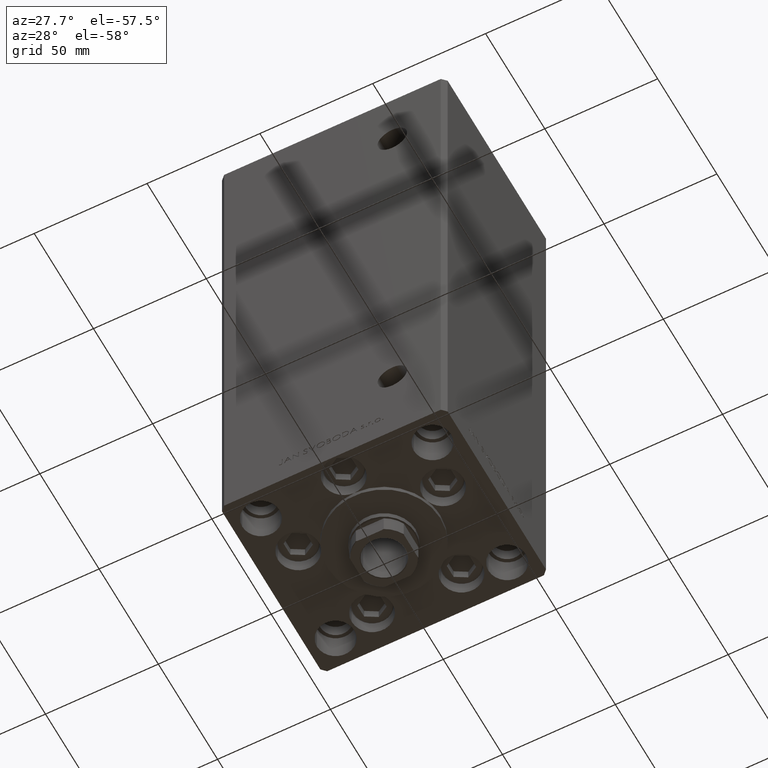
[diagram: clean part render]
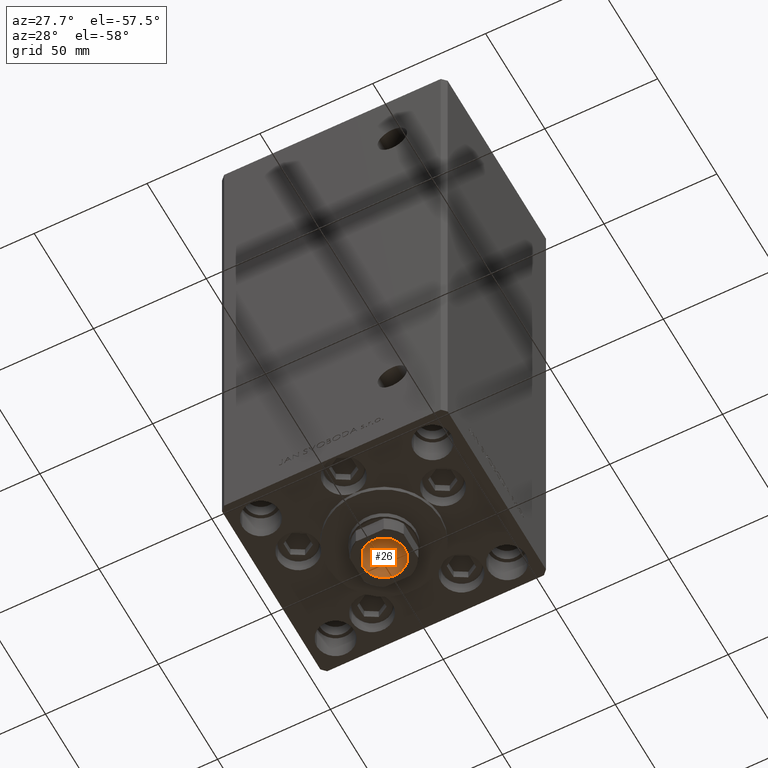
[diagram: same view with one face highlighted and labeled with its STEP entity id]
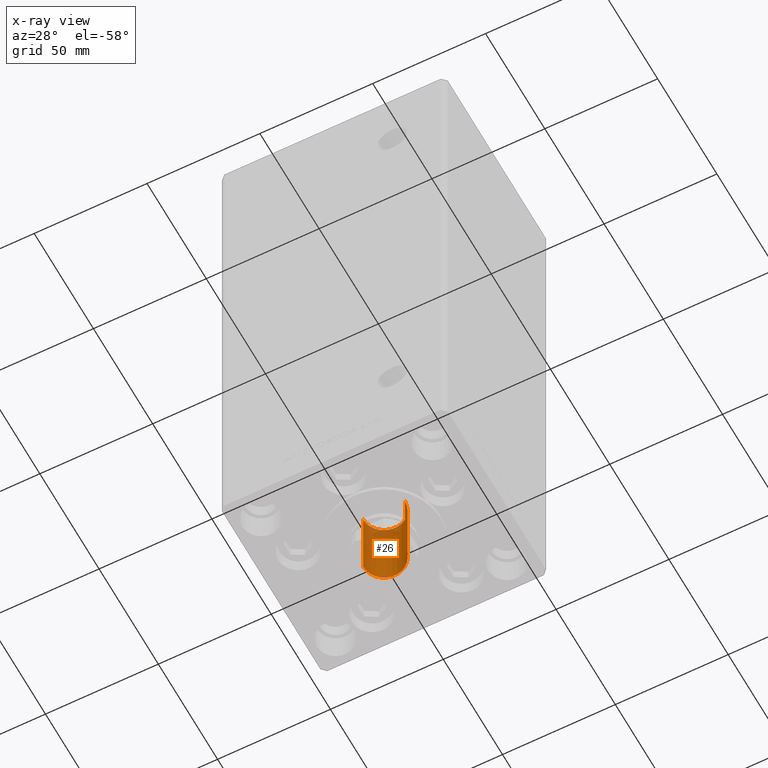
[diagram: x-ray of the same camera — body ghosted, the highlighted face saturated]
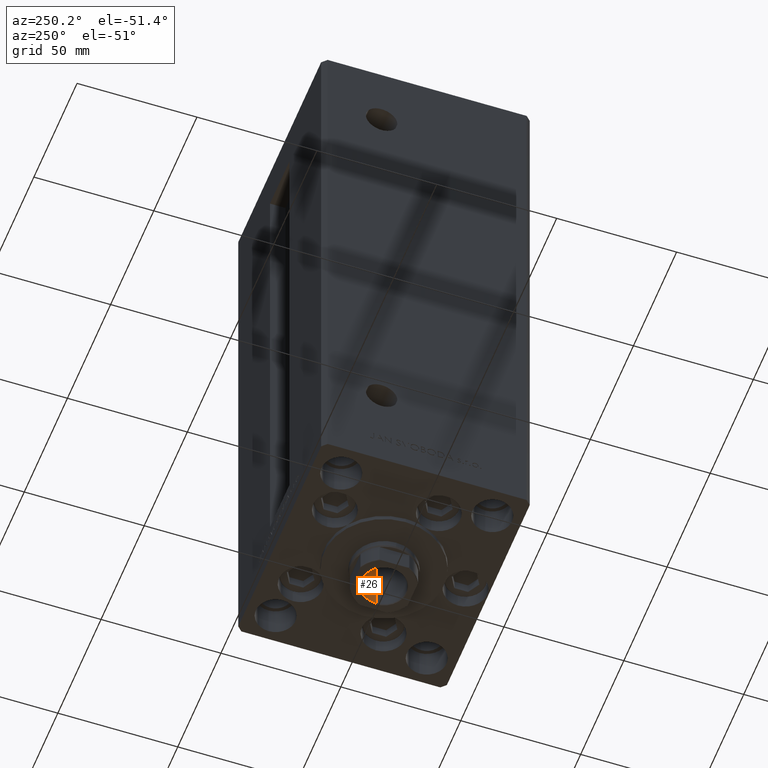
[diagram: same view with one face highlighted and labeled with its STEP entity id]
A machine part, auxiliary view. The second image highlights one B-rep face of the part: STEP entity #26.
The next image is the same camera in x-ray: the body ghosted, the highlighted face saturated — about 11% of this face is hidden behind the body in this view.
A second angle (auxiliary view) of the same face is appended — the face is thin or edge-on in the first view.
In plain terms, the highlighted cylindrical surface (edge-blend (fillet) strip) has radius 9.25 mm, axis along (0, 0, -1).
Its self-contained STEP definition (entity closure, byte-faithful):
#26 = ADVANCED_FACE ( 'NONE', ( #6916 ), #48718, .F. ) ;
#3104 = AXIS2_PLACEMENT_3D ( 'NONE', #7505, #37884, #3202 ) ;
#3202 = DIRECTION ( 'NONE',  ( 1.000000000000000000, 0.000000000000000000, 0.000000000000000000 ) ) ;
#5864 = CARTESIAN_POINT ( 'NONE',  ( 9.249999999999994671, 0.000000000000000000, 185.2500000000000000 ) ) ;
#6916 = FACE_OUTER_BOUND ( 'NONE', #23386, .T. ) ;
#7505 = CARTESIAN_POINT ( 'NONE',  ( 0.000000000000000000, 0.000000000000000000, 219.9499999999999886 ) ) ;
#8431 = DIRECTION ( 'NONE',  ( -0.000000000000000000, -0.000000000000000000, 1.000000000000000000 ) ) ;
#11177 = CARTESIAN_POINT ( 'NONE',  ( 9.249999999999996447, 0.000000000000000000, 219.9499999999999886 ) ) ;
#12487 = VERTEX_POINT ( 'NONE', #24999 ) ;
#16855 = VECTOR ( 'NONE', #38197, 1000.000000000000000 ) ;
#17030 = EDGE_CURVE ( 'NONE', #41628, #32437, #22129, .T. ) ;
#17959 = VERTEX_POINT ( 'NONE', #11177 ) ;
#18078 = DIRECTION ( 'NONE',  ( 1.000000000000000000, 0.000000000000000000, 0.000000000000000000 ) ) ;
#18704 = ORIENTED_EDGE ( 'NONE', *, *, #38874, .T. ) ;
#22116 = LINE ( 'NONE', #30629, #28075 ) ;
#22129 = CIRCLE ( 'NONE', #25347, 9.249999999999994671 ) ;
#22363 = CARTESIAN_POINT ( 'NONE',  ( 0.000000000000000000, 0.000000000000000000, 220.2500000000000000 ) ) ;
#22541 = AXIS2_PLACEMENT_3D ( 'NONE', #22363, #37789, #18078 ) ;
#23027 = CARTESIAN_POINT ( 'NONE',  ( -9.249999999999996447, 1.132798289211301304E-15, 220.2500000000000000 ) ) ;
#23386 = EDGE_LOOP ( 'NONE', ( #44727, #47546, #44635, #18704 ) ) ;
#24999 = CARTESIAN_POINT ( 'NONE',  ( -9.249999999999996447, 1.132798289211301304E-15, 219.9499999999999886 ) ) ;
#25347 = AXIS2_PLACEMENT_3D ( 'NONE', #35747, #8431, #34755 ) ;
#27159 = EDGE_CURVE ( 'NONE', #32437, #12487, #46551, .T. ) ;
#28075 = VECTOR ( 'NONE', #38725, 1000.000000000000000 ) ;
#28111 = CARTESIAN_POINT ( 'NONE',  ( -9.249999999999994671, 1.132798289211300909E-15, 185.2500000000000000 ) ) ;
#29407 = EDGE_CURVE ( 'NONE', #41628, #17959, #22116, .T. ) ;
#30629 = CARTESIAN_POINT ( 'NONE',  ( 9.249999999999996447, 0.000000000000000000, 220.2500000000000000 ) ) ;
#32437 = VERTEX_POINT ( 'NONE', #28111 ) ;
#34755 = DIRECTION ( 'NONE',  ( 1.000000000000000000, 0.000000000000000000, 0.000000000000000000 ) ) ;
#35747 = CARTESIAN_POINT ( 'NONE',  ( 0.000000000000000000, 0.000000000000000000, 185.2500000000000000 ) ) ;
#37789 = DIRECTION ( 'NONE',  ( -0.000000000000000000, -0.000000000000000000, 1.000000000000000000 ) ) ;
#37884 = DIRECTION ( 'NONE',  ( 0.000000000000000000, 0.000000000000000000, 1.000000000000000000 ) ) ;
#38197 = DIRECTION ( 'NONE',  ( -0.000000000000000000, -0.000000000000000000, 1.000000000000000000 ) ) ;
#38725 = DIRECTION ( 'NONE',  ( -0.000000000000000000, -0.000000000000000000, 1.000000000000000000 ) ) ;
#38874 = EDGE_CURVE ( 'NONE', #17959, #12487, #50010, .T. ) ;
#41628 = VERTEX_POINT ( 'NONE', #5864 ) ;
#44635 = ORIENTED_EDGE ( 'NONE', *, *, #29407, .T. ) ;
#44727 = ORIENTED_EDGE ( 'NONE', *, *, #27159, .F. ) ;
#46551 = LINE ( 'NONE', #23027, #16855 ) ;
#47546 = ORIENTED_EDGE ( 'NONE', *, *, #17030, .F. ) ;
#48718 = CYLINDRICAL_SURFACE ( 'NONE', #22541, 9.249999999999996447 ) ;
#50010 = CIRCLE ( 'NONE', #3104, 9.249999999999996447 ) ;